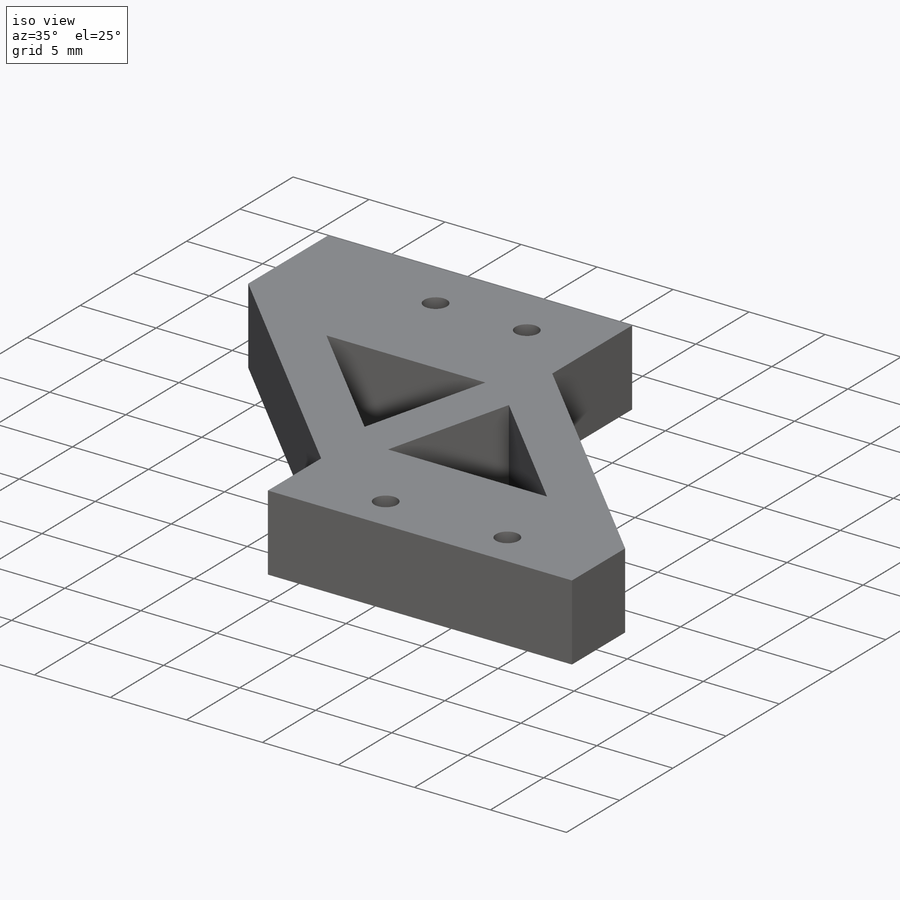
[diagram: iso view]
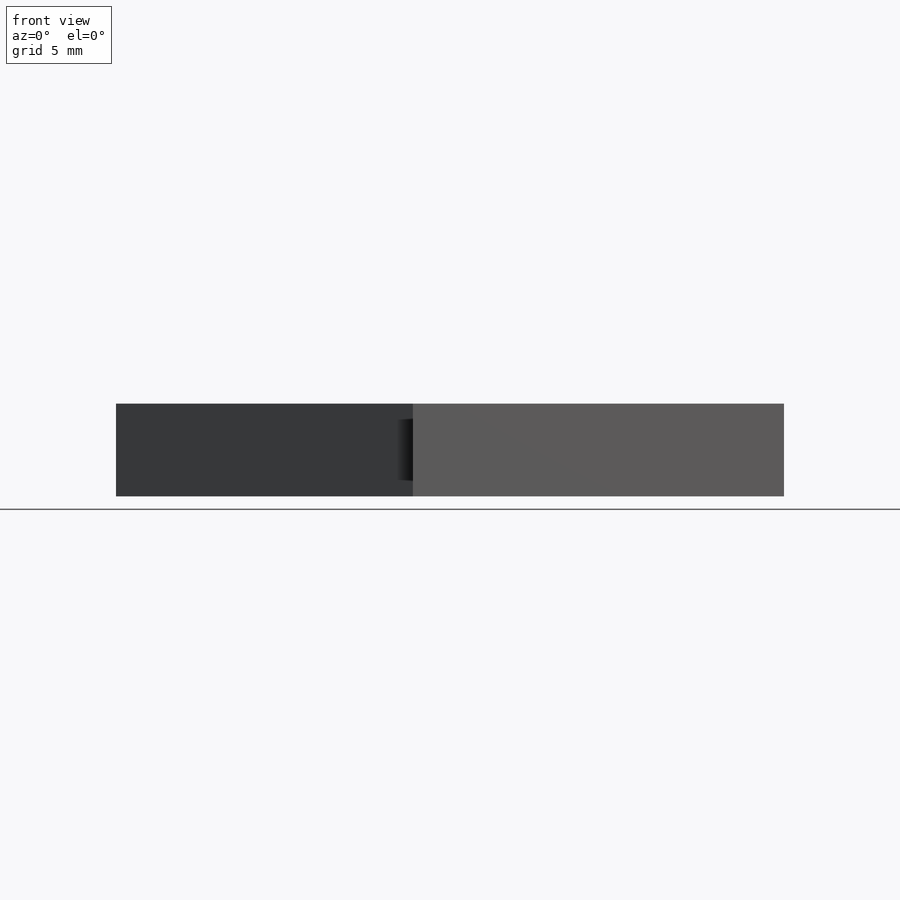
[diagram: front view]
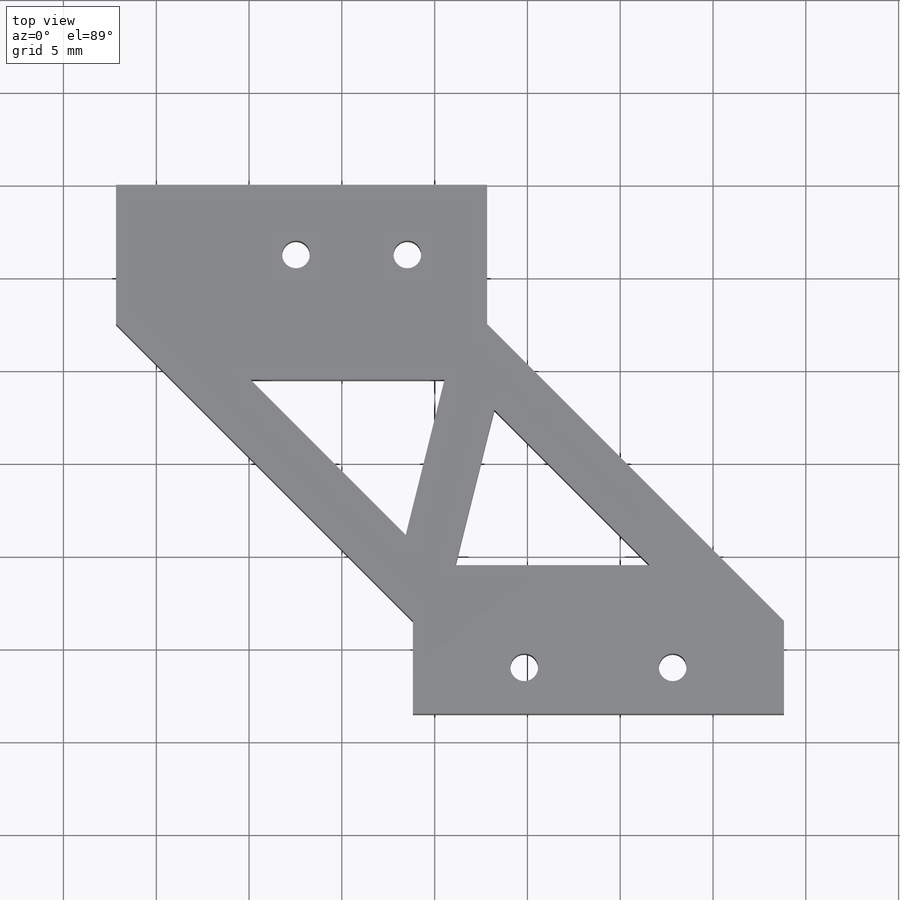
[diagram: top view]
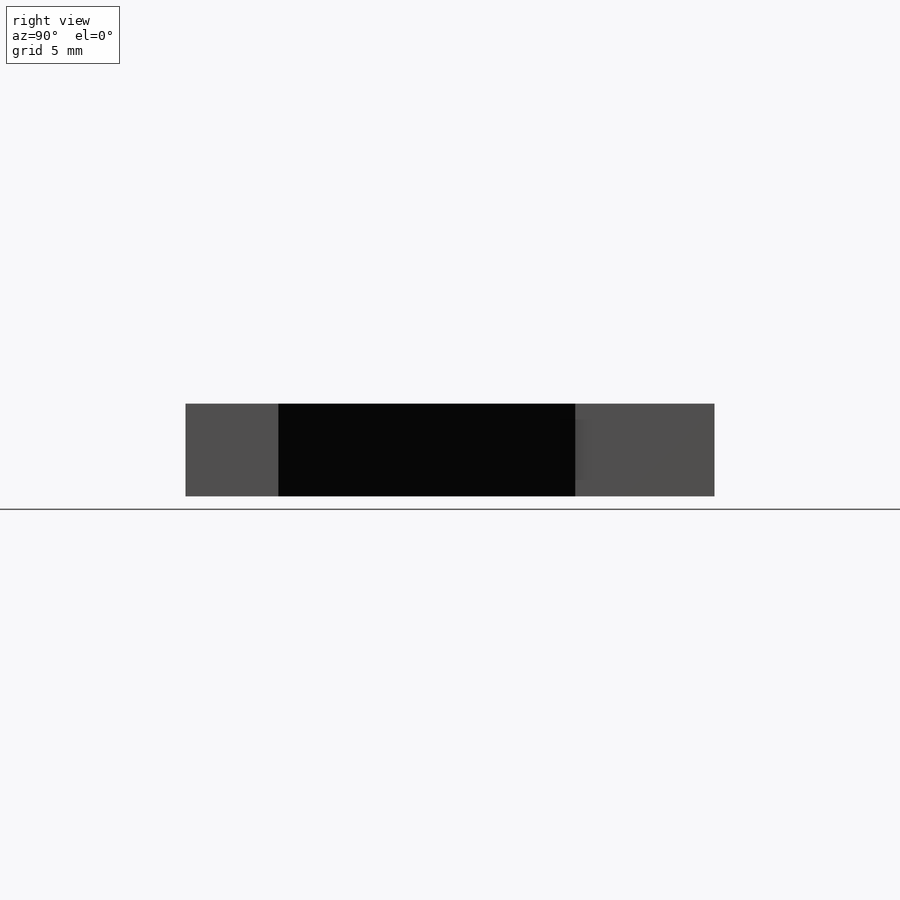
[diagram: right view]
SOLIDWORKS PART (.sldprt)
format: sldprt  version: not decoded by parser v0  size: 205,824 bytes
history: native  units: mm
features: sketch x6, extrude x3, cut_extrude x3, material x1 (+11 scaffold rows collapsed)
feature tree (24):
  scaffold x11  (default folders/planes/origin — collapsed)
  material  "Material <not specified>"
  sketch  "Sketch1"  dims[c1.D1=~40.54799mm c2.D1=45.0deg c2.D2=~28.671759mm c3.D2=135.0deg c3.D3=16.0mm c3.D4=20.0mm]
  extrude  "Boss-Extrude1"  Depth=5mm
  sketch  "Sketch2"
  extrude  "Boss-Extrude2"  Depth=7.5mm
  sketch  "Sketch3"
  extrude  "Boss-Extrude3"  Depth=5mm
  sketch  "Sketch5"  dims[D1=3.0mm D2=3.0mm D3=1.5mm D4=1.5mm D5=3.0mm D6=3.0mm]
  cut_extrude  "Cut-Extrude2"  [1 undecoded]
  sketch  "Sketch7"  dims[c1.D4=2.0mm c1.D5=2.0mm c1.D6=1.5mm c1.D1=6.0mm c1.D2=2.5mm c1.D3=2.5mm c2.D6=6.0mm]
  cut_extrude  "Cut-Extrude3"  [1 undecoded]
  sketch  "Sketch8"  dims[c1.D1=2.0mm c1.D2=2.0mm c1.D4=1.5mm c1.D5=1.5mm c2.D4=1.5mm c2.D6=1.5mm c2.D3=4.3mm c3.D4=6.0mm c3.D5=3.75mm c4.D4=3.75mm c4.D6=6.0mm]
  cut_extrude  "Cut-Extrude4"  [1 undecoded]
decode coverage: 7 of 12 modeling features carry decoded parameters
note: ~ marks probable driven/reference dimensions
note: 3 parameter values undecoded
summary: no parameter record found for 3 features
note: suppression state not decoded; provenance and decode notes live in map.json
